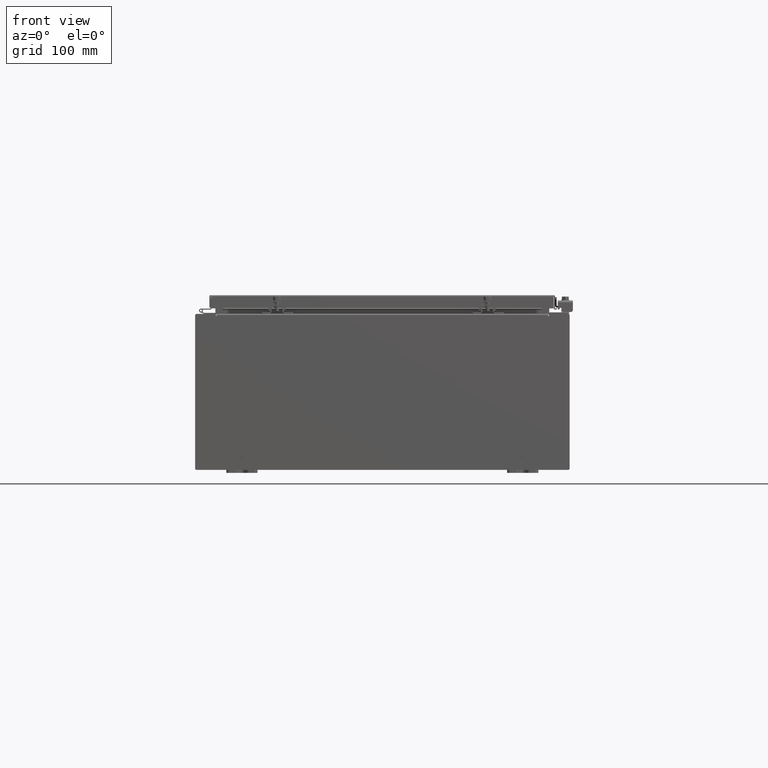
[diagram: clean part render]
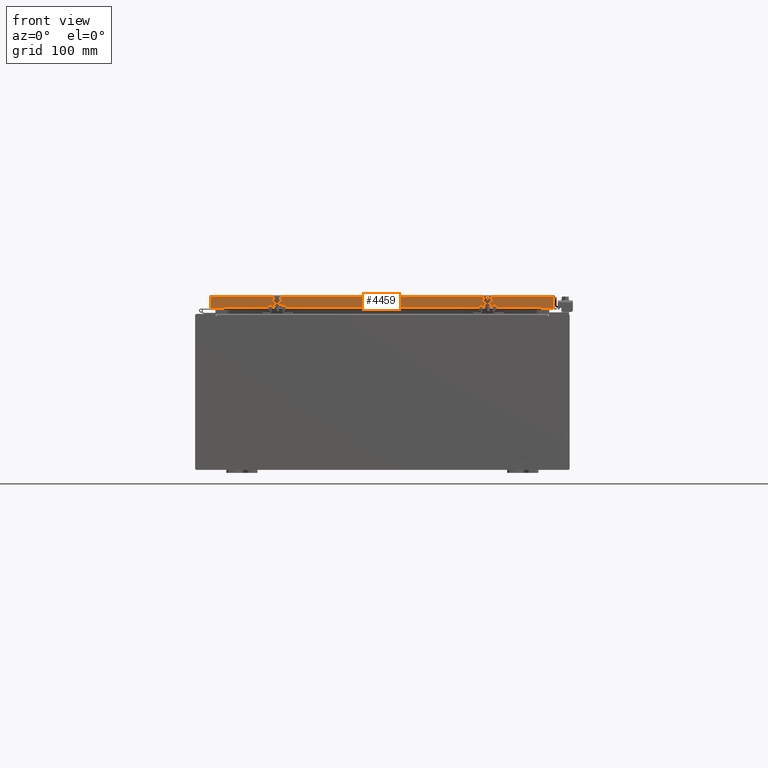
[diagram: same view with one face highlighted and labeled with its STEP entity id]
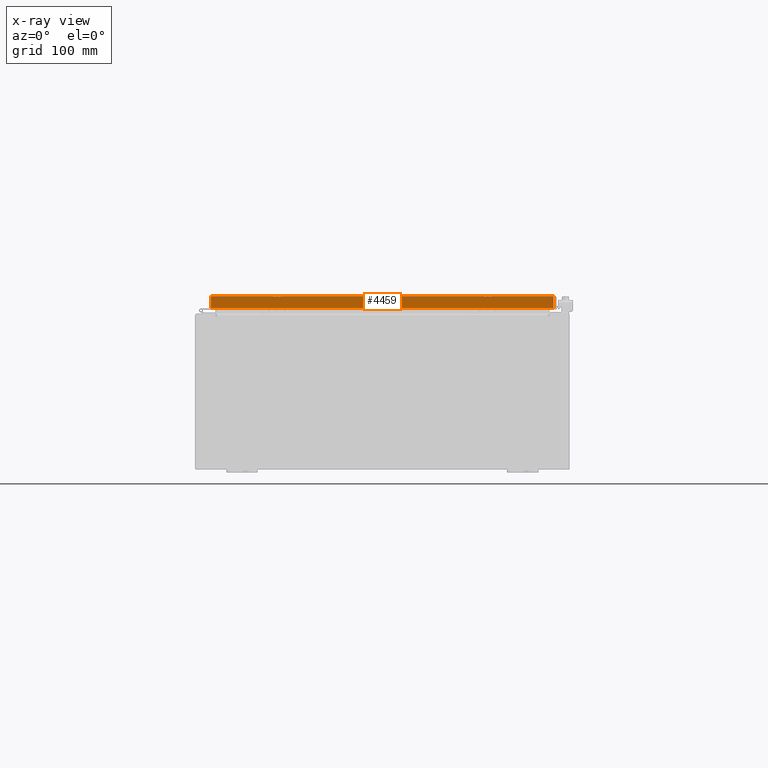
[diagram: x-ray of the same camera — body ghosted, the highlighted face saturated]
A machine part, front view. The second image highlights one B-rep face of the part: STEP entity #4459.
The next image is the same camera in x-ray: the body ghosted, the highlighted face saturated — about 0% of this face is hidden behind the body in this view.
In plain terms, the highlighted planar face has unit normal (-0, 1, -0).
Its self-contained STEP definition (entity closure, byte-faithful):
#1130 = CARTESIAN_POINT ( 'NONE',  ( 11.07799999999999600, -17.09399999999999800, -0.8499999999999996400 ) ) ;
#2198 = VERTEX_POINT ( 'NONE', #32960 ) ;
#2275 = EDGE_CURVE ( 'NONE', #35396, #40035, #14718, .T. ) ;
#2351 = CARTESIAN_POINT ( 'NONE',  ( 11.07799999999999600, -17.09399999999999800, -0.08770000000000007000 ) ) ;
#3456 = LINE ( 'NONE', #1130, #28372 ) ;
#4459 = ADVANCED_FACE ( 'NONE', ( #24813 ), #35541, .F. ) ;
#5227 = EDGE_CURVE ( 'NONE', #38958, #40035, #32785, .T. ) ;
#6980 = DIRECTION ( 'NONE',  ( -0.0000000000000000000, -2.818880942772360500E-015, -1.000000000000000000 ) ) ;
#9844 = LINE ( 'NONE', #2351, #35776 ) ;
#10955 = DIRECTION ( 'NONE',  ( -1.000000000000000000, 4.379057701015053300E-047, 1.233005954894504400E-016 ) ) ;
#10959 = ORIENTED_EDGE ( 'NONE', *, *, #17740, .F. ) ;
#11397 = ORIENTED_EDGE ( 'NONE', *, *, #32083, .F. ) ;
#11850 = VERTEX_POINT ( 'NONE', #33384 ) ;
#12027 = DIRECTION ( 'NONE',  ( 1.000000000000000000, 6.951393977153911800E-032, -9.864047639156036200E-017 ) ) ;
#14711 = LINE ( 'NONE', #15606, #20299 ) ;
#14718 = LINE ( 'NONE', #35861, #30961 ) ;
#15606 = CARTESIAN_POINT ( 'NONE',  ( 10.23915786437626200, -17.09399999999999400, -0.8500000000000000900 ) ) ;
#17740 = EDGE_CURVE ( 'NONE', #38958, #39940, #9844, .T. ) ;
#19465 = LINE ( 'NONE', #32921, #36760 ) ;
#19814 = DIRECTION ( 'NONE',  ( 0.0000000000000000000, -2.818880942772360500E-015, -1.000000000000000000 ) ) ;
#19926 = CARTESIAN_POINT ( 'NONE',  ( -10.98915786437626900, -17.09399999999999800, 4.844676449176230100E-014 ) ) ;
#20299 = VECTOR ( 'NONE', #41595, 39.37007874015748100 ) ;
#22204 = EDGE_LOOP ( 'NONE', ( #10959, #41083, #39716, #23062, #39844, #11397 ) ) ;
#23062 = ORIENTED_EDGE ( 'NONE', *, *, #23368, .F. ) ;
#23368 = EDGE_CURVE ( 'NONE', #11850, #35396, #14711, .T. ) ;
#23893 = AXIS2_PLACEMENT_3D ( 'NONE', #35295, #35263, #35257 ) ;
#24813 = FACE_OUTER_BOUND ( 'NONE', #22204, .T. ) ;
#25912 = CARTESIAN_POINT ( 'NONE',  ( -10.98915786437627200, -17.09399999999999800, -0.08769999999999787700 ) ) ;
#28372 = VECTOR ( 'NONE', #10955, 39.37007874015748100 ) ;
#29182 = CARTESIAN_POINT ( 'NONE',  ( 10.98915786437626700, -17.09399999999999800, -0.08769999999999897300 ) ) ;
#30961 = VECTOR ( 'NONE', #36484, 39.37007874015748100 ) ;
#31783 = VECTOR ( 'NONE', #19814, 39.37007874015748100 ) ;
#32083 = EDGE_CURVE ( 'NONE', #39940, #2198, #19465, .T. ) ;
#32785 = LINE ( 'NONE', #19926, #31783 ) ;
#32921 = CARTESIAN_POINT ( 'NONE',  ( 10.98915786437626500, -17.09399999999999800, -0.07469999999999978000 ) ) ;
#32960 = CARTESIAN_POINT ( 'NONE',  ( 10.98915786437626500, -17.09399999999999800, -0.8499999999999996400 ) ) ;
#33384 = CARTESIAN_POINT ( 'NONE',  ( 10.23915786437626200, -17.09399999999999400, -0.8500000000000000900 ) ) ;
#35257 = DIRECTION ( 'NONE',  ( 0.0000000000000000000, 2.818880942772360500E-015, 1.000000000000000000 ) ) ;
#35263 = DIRECTION ( 'NONE',  ( -3.475696988576954900E-031, 1.000000000000000000, -2.818880942772360500E-015 ) ) ;
#35295 = CARTESIAN_POINT ( 'NONE',  ( 5.941356432273445000E-030, -17.09399999999999800, 4.844676449176230100E-014 ) ) ;
#35396 = VERTEX_POINT ( 'NONE', #40423 ) ;
#35541 = PLANE ( 'NONE',  #23893 ) ;
#35776 = VECTOR ( 'NONE', #12027, 39.37007874015748100 ) ;
#35861 = CARTESIAN_POINT ( 'NONE',  ( 11.07799999999999600, -17.09399999999999800, -0.8499999999999996400 ) ) ;
#36484 = DIRECTION ( 'NONE',  ( -1.000000000000000000, 4.379057701015053300E-047, 1.233005954894504400E-016 ) ) ;
#36760 = VECTOR ( 'NONE', #6980, 39.37007874015748100 ) ;
#38958 = VERTEX_POINT ( 'NONE', #25912 ) ;
#39185 = EDGE_CURVE ( 'NONE', #2198, #11850, #3456, .T. ) ;
#39411 = CARTESIAN_POINT ( 'NONE',  ( -10.98915786437627200, -17.09399999999999800, -0.8499999999999969800 ) ) ;
#39716 = ORIENTED_EDGE ( 'NONE', *, *, #2275, .F. ) ;
#39844 = ORIENTED_EDGE ( 'NONE', *, *, #39185, .F. ) ;
#39940 = VERTEX_POINT ( 'NONE', #29182 ) ;
#40035 = VERTEX_POINT ( 'NONE', #39411 ) ;
#40423 = CARTESIAN_POINT ( 'NONE',  ( -10.23915786437627100, -17.09399999999999400, -0.8500000000000000900 ) ) ;
#41083 = ORIENTED_EDGE ( 'NONE', *, *, #5227, .T. ) ;
#41595 = DIRECTION ( 'NONE',  ( -1.000000000000000000, 0.0000000000000000000, 0.0000000000000000000 ) ) ;